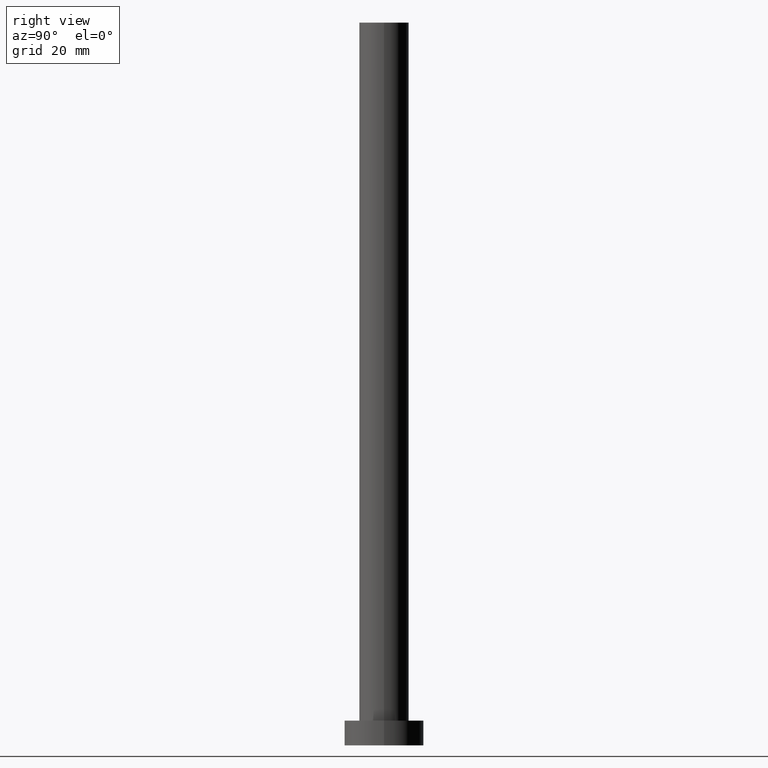
[diagram: clean part render]
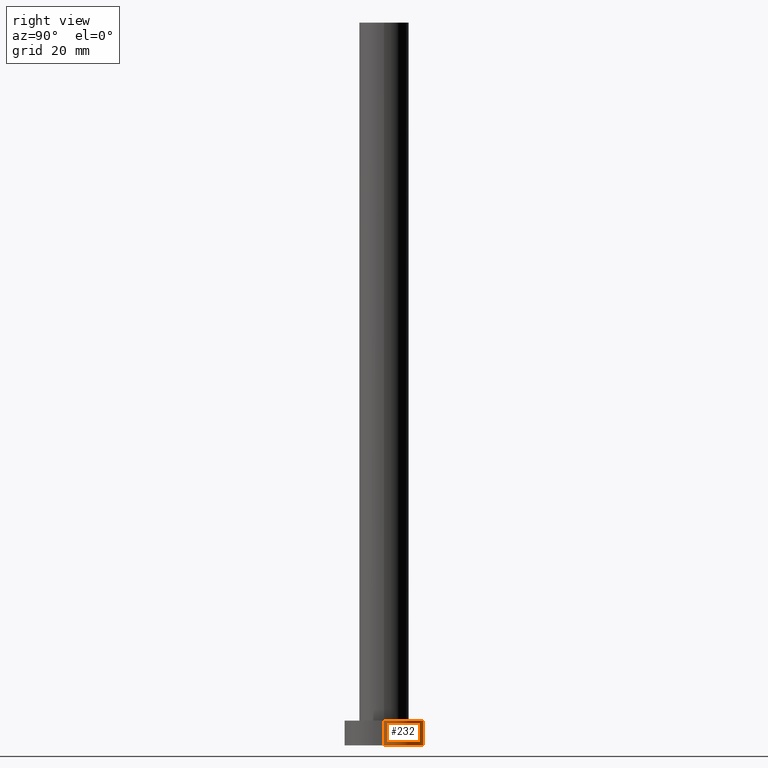
[diagram: same view with one face highlighted and labeled with its STEP entity id]
A machine part, right view. The second image highlights one B-rep face of the part: STEP entity #232.
In plain terms, the highlighted cylindrical surface (partial cylindrical patch) has radius 8 mm, axis along (-0, -0, -1).
Its self-contained STEP definition (entity closure, byte-faithful):
#10 = ORIENTED_EDGE ( 'NONE', *, *, #187, .F. ) ;
#11 = DIRECTION ( 'NONE',  ( 1.000000000000000000, 0.000000000000000000, 0.000000000000000000 ) ) ;
#14 = AXIS2_PLACEMENT_3D ( 'NONE', #84, #159, #22 ) ;
#16 = DIRECTION ( 'NONE',  ( -0.000000000000000000, -0.000000000000000000, -1.000000000000000000 ) ) ;
#22 = DIRECTION ( 'NONE',  ( 1.000000000000000000, 0.000000000000000000, 0.000000000000000000 ) ) ;
#23 = DIRECTION ( 'NONE',  ( -0.000000000000000000, -0.000000000000000000, -1.000000000000000000 ) ) ;
#28 = EDGE_LOOP ( 'NONE', ( #10, #148, #162, #83 ) ) ;
#46 = CARTESIAN_POINT ( 'NONE',  ( 8.000000000000000000, 9.797174393178825657E-16, 0.000000000000000000 ) ) ;
#47 = VERTEX_POINT ( 'NONE', #180 ) ;
#49 = EDGE_CURVE ( 'NONE', #106, #47, #94, .T. ) ;
#55 = LINE ( 'NONE', #192, #216 ) ;
#63 = CARTESIAN_POINT ( 'NONE',  ( 8.000000000000000000, 9.797174393178825657E-16, 5.000000000000000000 ) ) ;
#75 = VERTEX_POINT ( 'NONE', #63 ) ;
#83 = ORIENTED_EDGE ( 'NONE', *, *, #205, .F. ) ;
#84 = CARTESIAN_POINT ( 'NONE',  ( 0.000000000000000000, 0.000000000000000000, 0.000000000000000000 ) ) ;
#89 = DIRECTION ( 'NONE',  ( -1.000000000000000000, 0.000000000000000000, 0.000000000000000000 ) ) ;
#93 = EDGE_CURVE ( 'NONE', #75, #106, #202, .T. ) ;
#94 = CIRCLE ( 'NONE', #14, 8.000000000000000000 ) ;
#103 = CARTESIAN_POINT ( 'NONE',  ( -8.000000000000000000, 0.000000000000000000, 5.000000000000000000 ) ) ;
#106 = VERTEX_POINT ( 'NONE', #46 ) ;
#107 = VERTEX_POINT ( 'NONE', #103 ) ;
#124 = AXIS2_PLACEMENT_3D ( 'NONE', #211, #149, #11 ) ;
#131 = CYLINDRICAL_SURFACE ( 'NONE', #141, 8.000000000000000000 ) ;
#141 = AXIS2_PLACEMENT_3D ( 'NONE', #209, #169, #89 ) ;
#148 = ORIENTED_EDGE ( 'NONE', *, *, #93, .T. ) ;
#149 = DIRECTION ( 'NONE',  ( 0.000000000000000000, 0.000000000000000000, 1.000000000000000000 ) ) ;
#154 = VECTOR ( 'NONE', #23, 1000.000000000000000 ) ;
#159 = DIRECTION ( 'NONE',  ( 0.000000000000000000, 0.000000000000000000, 1.000000000000000000 ) ) ;
#162 = ORIENTED_EDGE ( 'NONE', *, *, #49, .T. ) ;
#169 = DIRECTION ( 'NONE',  ( -0.000000000000000000, -0.000000000000000000, -1.000000000000000000 ) ) ;
#180 = CARTESIAN_POINT ( 'NONE',  ( -8.000000000000000000, 0.000000000000000000, 0.000000000000000000 ) ) ;
#185 = FACE_OUTER_BOUND ( 'NONE', #28, .T. ) ;
#187 = EDGE_CURVE ( 'NONE', #75, #107, #249, .T. ) ;
#192 = CARTESIAN_POINT ( 'NONE',  ( -8.000000000000000000, 0.000000000000000000, 5.000000000000000000 ) ) ;
#202 = LINE ( 'NONE', #222, #154 ) ;
#205 = EDGE_CURVE ( 'NONE', #107, #47, #55, .T. ) ;
#209 = CARTESIAN_POINT ( 'NONE',  ( 0.000000000000000000, 0.000000000000000000, 5.000000000000000000 ) ) ;
#211 = CARTESIAN_POINT ( 'NONE',  ( 0.000000000000000000, 0.000000000000000000, 5.000000000000000000 ) ) ;
#216 = VECTOR ( 'NONE', #16, 1000.000000000000000 ) ;
#222 = CARTESIAN_POINT ( 'NONE',  ( 8.000000000000000000, 9.797174393178825657E-16, 5.000000000000000000 ) ) ;
#232 = ADVANCED_FACE ( 'NONE', ( #185 ), #131, .T. ) ;
#249 = CIRCLE ( 'NONE', #124, 8.000000000000000000 ) ;